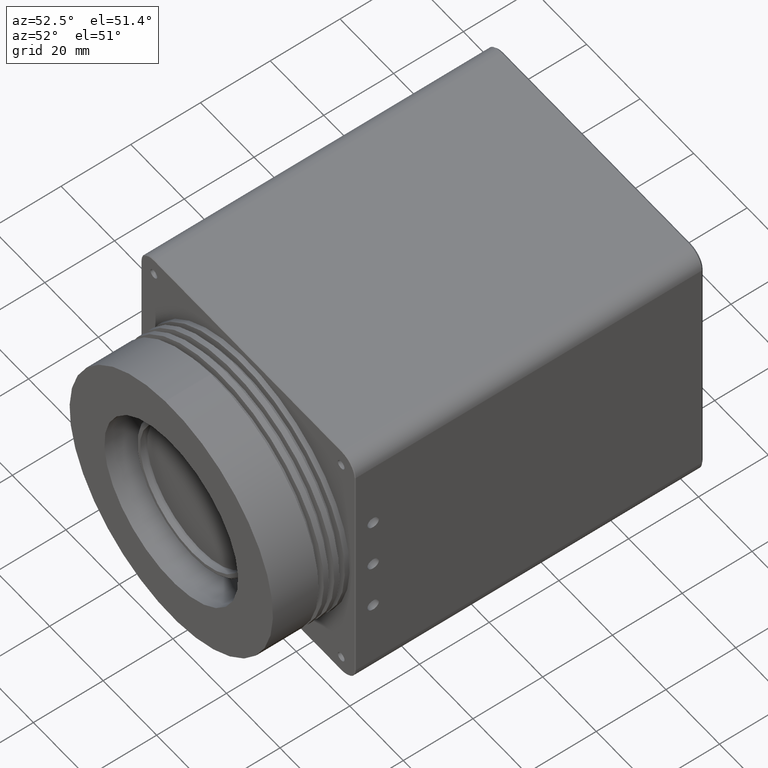
[diagram: clean part render]
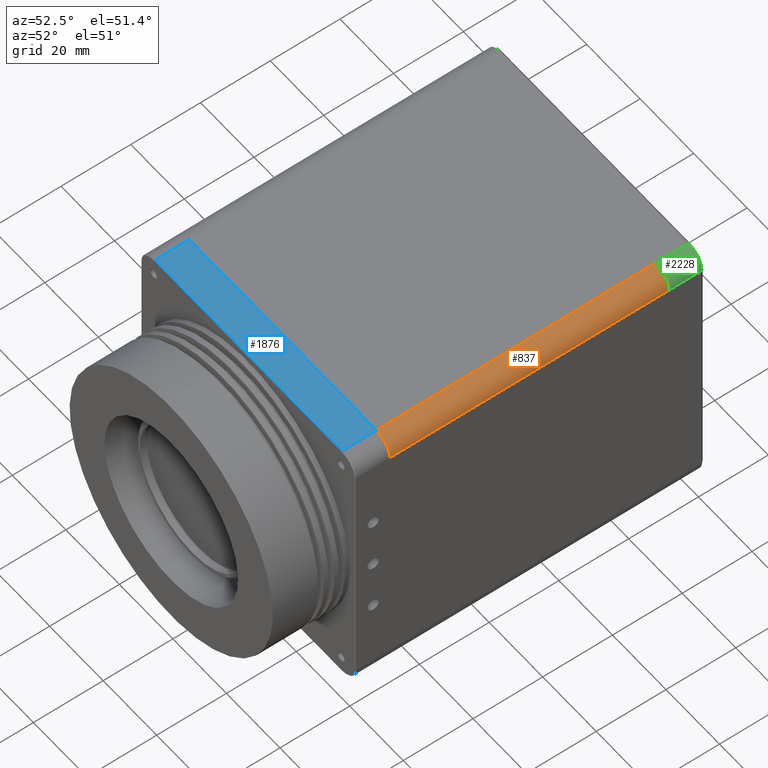
[diagram: same view with three faces highlighted in distinct colors, each labeled with its STEP entity id]
A machine part, auxiliary view with three faces highlighted in distinct colors.
Their STEP definitions:

[orange] entity #837 — the highlighted cylindrical surface (edge-blend (fillet) strip) has radius 5 mm, axis along (-0, -1, -0).
#52 = VECTOR ( 'NONE', #929, 1000.000000000000000 ) ;
#184 = CARTESIAN_POINT ( 'NONE',  ( 57.30124153498871920, 53.60462753950339021, 35.00000000000000000 ) ) ;
#317 = CIRCLE ( 'NONE', #910, 4.999999999999997335 ) ;
#446 = DIRECTION ( 'NONE',  ( 0.000000000000000000, 0.000000000000000000, -1.000000000000000000 ) ) ;
#588 = ORIENTED_EDGE ( 'NONE', *, *, #1372, .T. ) ;
#663 = CARTESIAN_POINT ( 'NONE',  ( 52.30124153498868367, 53.60462753950339021, 40.00000000000000000 ) ) ;
#837 = ADVANCED_FACE ( 'NONE', ( #3333 ), #3390, .T. ) ;
#910 = AXIS2_PLACEMENT_3D ( 'NONE', #1756, #1773, #2808 ) ;
#929 = DIRECTION ( 'NONE',  ( -0.000000000000000000, -1.000000000000000000, -0.000000000000000000 ) ) ;
#974 = ORIENTED_EDGE ( 'NONE', *, *, #3107, .F. ) ;
#1004 = LINE ( 'NONE', #1248, #2792 ) ;
#1011 = ORIENTED_EDGE ( 'NONE', *, *, #3124, .F. ) ;
#1206 = VERTEX_POINT ( 'NONE', #663 ) ;
#1248 = CARTESIAN_POINT ( 'NONE',  ( 52.30124153498868367, 53.60462753950339021, 40.00000000000000000 ) ) ;
#1267 = EDGE_CURVE ( 'NONE', #1206, #2329, #1004, .T. ) ;
#1372 = EDGE_CURVE ( 'NONE', #2329, #2604, #317, .T. ) ;
#1395 = VERTEX_POINT ( 'NONE', #184 ) ;
#1428 = CARTESIAN_POINT ( 'NONE',  ( 57.30124153498871920, 53.60462753950339021, 35.00000000000000000 ) ) ;
#1498 = CARTESIAN_POINT ( 'NONE',  ( 57.30124153498871920, -26.39537246049660624, 35.00000000000000000 ) ) ;
#1607 = CARTESIAN_POINT ( 'NONE',  ( 52.30124153498868367, -26.39537246049660624, 40.00000000000000000 ) ) ;
#1756 = CARTESIAN_POINT ( 'NONE',  ( 52.30124153498871920, -26.39537246049660624, 35.00000000000000000 ) ) ;
#1773 = DIRECTION ( 'NONE',  ( 0.000000000000000000, 1.000000000000000000, 0.000000000000000000 ) ) ;
#1935 = ORIENTED_EDGE ( 'NONE', *, *, #1267, .T. ) ;
#2066 = DIRECTION ( 'NONE',  ( -0.000000000000000000, -1.000000000000000000, -0.000000000000000000 ) ) ;
#2113 = DIRECTION ( 'NONE',  ( 0.000000000000000000, 0.000000000000000000, 1.000000000000000000 ) ) ;
#2329 = VERTEX_POINT ( 'NONE', #1607 ) ;
#2368 = EDGE_LOOP ( 'NONE', ( #588, #1011, #974, #1935 ) ) ;
#2604 = VERTEX_POINT ( 'NONE', #1498 ) ;
#2722 = CARTESIAN_POINT ( 'NONE',  ( 52.30124153498871920, 53.60462753950339021, 35.00000000000000000 ) ) ;
#2792 = VECTOR ( 'NONE', #2860, 1000.000000000000000 ) ;
#2808 = DIRECTION ( 'NONE',  ( 0.000000000000000000, 0.000000000000000000, 1.000000000000000000 ) ) ;
#2860 = DIRECTION ( 'NONE',  ( -0.000000000000000000, -1.000000000000000000, -0.000000000000000000 ) ) ;
#2879 = CARTESIAN_POINT ( 'NONE',  ( 52.30124153498871920, 53.60462753950339021, 35.00000000000000000 ) ) ;
#2929 = DIRECTION ( 'NONE',  ( 0.000000000000000000, 1.000000000000000000, 0.000000000000000000 ) ) ;
#2960 = AXIS2_PLACEMENT_3D ( 'NONE', #2879, #2066, #446 ) ;
#3033 = CIRCLE ( 'NONE', #3372, 4.999999999999997335 ) ;
#3107 = EDGE_CURVE ( 'NONE', #1206, #1395, #3033, .T. ) ;
#3124 = EDGE_CURVE ( 'NONE', #1395, #2604, #3276, .T. ) ;
#3276 = LINE ( 'NONE', #1428, #52 ) ;
#3333 = FACE_OUTER_BOUND ( 'NONE', #2368, .T. ) ;
#3372 = AXIS2_PLACEMENT_3D ( 'NONE', #2722, #2929, #2113 ) ;
#3390 = CYLINDRICAL_SURFACE ( 'NONE', #2960, 4.999999999999997335 ) ;

[blue] entity #1876 — the highlighted planar face has unit normal (0, 0, -1).
#154 = VERTEX_POINT ( 'NONE', #165 ) ;
#165 = CARTESIAN_POINT ( 'NONE',  ( -17.69875846501127370, -36.19537246049659984, 40.00000000000000000 ) ) ;
#228 = EDGE_LOOP ( 'NONE', ( #2441, #3362, #1634, #2899 ) ) ;
#359 = LINE ( 'NONE', #3052, #3070 ) ;
#439 = LINE ( 'NONE', #1208, #2028 ) ;
#671 = VERTEX_POINT ( 'NONE', #1623 ) ;
#769 = EDGE_CURVE ( 'NONE', #1047, #671, #359, .T. ) ;
#1047 = VERTEX_POINT ( 'NONE', #2133 ) ;
#1149 = DIRECTION ( 'NONE',  ( -0.000000000000000000, -1.000000000000000000, -0.000000000000000000 ) ) ;
#1208 = CARTESIAN_POINT ( 'NONE',  ( -17.69875846501127370, -26.39537246049660624, 40.00000000000000000 ) ) ;
#1298 = DIRECTION ( 'NONE',  ( 1.000000000000000000, 0.000000000000000000, 0.000000000000000000 ) ) ;
#1333 = PLANE ( 'NONE',  #2082 ) ;
#1463 = LINE ( 'NONE', #3054, #2356 ) ;
#1613 = FACE_OUTER_BOUND ( 'NONE', #228, .T. ) ;
#1623 = CARTESIAN_POINT ( 'NONE',  ( 52.30124153498868367, -36.19537246049659984, 40.00000000000000000 ) ) ;
#1627 = VERTEX_POINT ( 'NONE', #2440 ) ;
#1634 = ORIENTED_EDGE ( 'NONE', *, *, #769, .F. ) ;
#1707 = EDGE_CURVE ( 'NONE', #1627, #154, #439, .T. ) ;
#1804 = CARTESIAN_POINT ( 'NONE',  ( 52.30124153498868367, -36.19537246049659984, 40.00000000000000000 ) ) ;
#1823 = DIRECTION ( 'NONE',  ( -1.000000000000000000, 0.000000000000000000, -0.000000000000000000 ) ) ;
#1876 = ADVANCED_FACE ( 'NONE', ( #1613 ), #1333, .F. ) ;
#1995 = EDGE_CURVE ( 'NONE', #1627, #1047, #1463, .T. ) ;
#2028 = VECTOR ( 'NONE', #2819, 1000.000000000000000 ) ;
#2082 = AXIS2_PLACEMENT_3D ( 'NONE', #3134, #2922, #1823 ) ;
#2133 = CARTESIAN_POINT ( 'NONE',  ( 52.30124153498868367, -26.39537246049660624, 40.00000000000000000 ) ) ;
#2356 = VECTOR ( 'NONE', #2771, 1000.000000000000000 ) ;
#2440 = CARTESIAN_POINT ( 'NONE',  ( -17.69875846501127370, -26.39537246049660624, 40.00000000000000000 ) ) ;
#2441 = ORIENTED_EDGE ( 'NONE', *, *, #1707, .T. ) ;
#2753 = VECTOR ( 'NONE', #1298, 1000.000000000000000 ) ;
#2771 = DIRECTION ( 'NONE',  ( 1.000000000000000000, 0.000000000000000000, 0.000000000000000000 ) ) ;
#2819 = DIRECTION ( 'NONE',  ( -0.000000000000000000, -1.000000000000000000, -0.000000000000000000 ) ) ;
#2821 = LINE ( 'NONE', #1804, #2753 ) ;
#2899 = ORIENTED_EDGE ( 'NONE', *, *, #1995, .F. ) ;
#2922 = DIRECTION ( 'NONE',  ( 0.000000000000000000, 0.000000000000000000, -1.000000000000000000 ) ) ;
#3052 = CARTESIAN_POINT ( 'NONE',  ( 52.30124153498868367, -26.39537246049660624, 40.00000000000000000 ) ) ;
#3054 = CARTESIAN_POINT ( 'NONE',  ( -17.69875846501123817, -26.39537246049660624, 40.00000000000000000 ) ) ;
#3070 = VECTOR ( 'NONE', #1149, 1000.000000000000000 ) ;
#3134 = CARTESIAN_POINT ( 'NONE',  ( -17.69875846501123817, -26.39537246049660624, 40.00000000000000000 ) ) ;
#3313 = EDGE_CURVE ( 'NONE', #154, #671, #2821, .T. ) ;
#3362 = ORIENTED_EDGE ( 'NONE', *, *, #3313, .T. ) ;

[green] entity #2228 — the highlighted cylindrical surface (edge-blend (fillet) strip) has radius 5 mm, axis along (-0, -1, -0).
#63 = VERTEX_POINT ( 'NONE', #1314 ) ;
#89 = ORIENTED_EDGE ( 'NONE', *, *, #2209, .F. ) ;
#156 = DIRECTION ( 'NONE',  ( 2.081668171172169775E-14, 0.000000000000000000, 1.000000000000000000 ) ) ;
#168 = EDGE_CURVE ( 'NONE', #63, #1168, #198, .T. ) ;
#198 = CIRCLE ( 'NONE', #2117, 4.999999999999997335 ) ;
#375 = EDGE_CURVE ( 'NONE', #1575, #1501, #2398, .T. ) ;
#447 = CARTESIAN_POINT ( 'NONE',  ( 52.30124153498871920, 63.60462753950338310, 35.00000000000000000 ) ) ;
#514 = FACE_OUTER_BOUND ( 'NONE', #1903, .T. ) ;
#901 = DIRECTION ( 'NONE',  ( 0.000000000000000000, -1.000000000000000000, 0.000000000000000000 ) ) ;
#947 = CARTESIAN_POINT ( 'NONE',  ( 52.30124153498871920, 53.60462753950339021, 35.00000000000000000 ) ) ;
#1168 = VERTEX_POINT ( 'NONE', #3278 ) ;
#1228 = LINE ( 'NONE', #3347, #1363 ) ;
#1314 = CARTESIAN_POINT ( 'NONE',  ( 52.30124153498868367, 53.60462753950339021, 40.00000000000000000 ) ) ;
#1363 = VECTOR ( 'NONE', #2823, 1000.000000000000000 ) ;
#1398 = EDGE_CURVE ( 'NONE', #1501, #63, #1228, .T. ) ;
#1501 = VERTEX_POINT ( 'NONE', #2648 ) ;
#1534 = CYLINDRICAL_SURFACE ( 'NONE', #2412, 4.999999999999997335 ) ;
#1571 = DIRECTION ( 'NONE',  ( -0.000000000000000000, -1.000000000000000000, -0.000000000000000000 ) ) ;
#1575 = VERTEX_POINT ( 'NONE', #2720 ) ;
#1739 = AXIS2_PLACEMENT_3D ( 'NONE', #1986, #901, #156 ) ;
#1903 = EDGE_LOOP ( 'NONE', ( #89, #3414, #3113, #2434 ) ) ;
#1986 = CARTESIAN_POINT ( 'NONE',  ( 52.30124153498871920, 63.10462753950338310, 35.00000000000000000 ) ) ;
#2007 = DIRECTION ( 'NONE',  ( 0.000000000000000000, 1.000000000000000000, 0.000000000000000000 ) ) ;
#2035 = DIRECTION ( 'NONE',  ( -0.000000000000000000, -1.000000000000000000, -0.000000000000000000 ) ) ;
#2117 = AXIS2_PLACEMENT_3D ( 'NONE', #947, #2007, #2715 ) ;
#2209 = EDGE_CURVE ( 'NONE', #1575, #1168, #2359, .T. ) ;
#2228 = ADVANCED_FACE ( 'NONE', ( #514 ), #1534, .T. ) ;
#2359 = LINE ( 'NONE', #3404, #2579 ) ;
#2398 = CIRCLE ( 'NONE', #1739, 4.999999999999997335 ) ;
#2412 = AXIS2_PLACEMENT_3D ( 'NONE', #447, #1571, #2618 ) ;
#2434 = ORIENTED_EDGE ( 'NONE', *, *, #168, .T. ) ;
#2579 = VECTOR ( 'NONE', #2035, 1000.000000000000000 ) ;
#2618 = DIRECTION ( 'NONE',  ( 0.000000000000000000, 0.000000000000000000, -1.000000000000000000 ) ) ;
#2648 = CARTESIAN_POINT ( 'NONE',  ( 52.30124153498868367, 63.10462753950338310, 40.00000000000000000 ) ) ;
#2715 = DIRECTION ( 'NONE',  ( 0.000000000000000000, 0.000000000000000000, 1.000000000000000000 ) ) ;
#2720 = CARTESIAN_POINT ( 'NONE',  ( 57.30124153498871920, 63.10462753950338310, 35.00000000000000000 ) ) ;
#2823 = DIRECTION ( 'NONE',  ( -0.000000000000000000, -1.000000000000000000, -0.000000000000000000 ) ) ;
#3113 = ORIENTED_EDGE ( 'NONE', *, *, #1398, .T. ) ;
#3278 = CARTESIAN_POINT ( 'NONE',  ( 57.30124153498871920, 53.60462753950339021, 35.00000000000000000 ) ) ;
#3347 = CARTESIAN_POINT ( 'NONE',  ( 52.30124153498868367, 63.60462753950338310, 40.00000000000000000 ) ) ;
#3404 = CARTESIAN_POINT ( 'NONE',  ( 57.30124153498871920, 63.60462753950338310, 35.00000000000000000 ) ) ;
#3414 = ORIENTED_EDGE ( 'NONE', *, *, #375, .T. ) ;